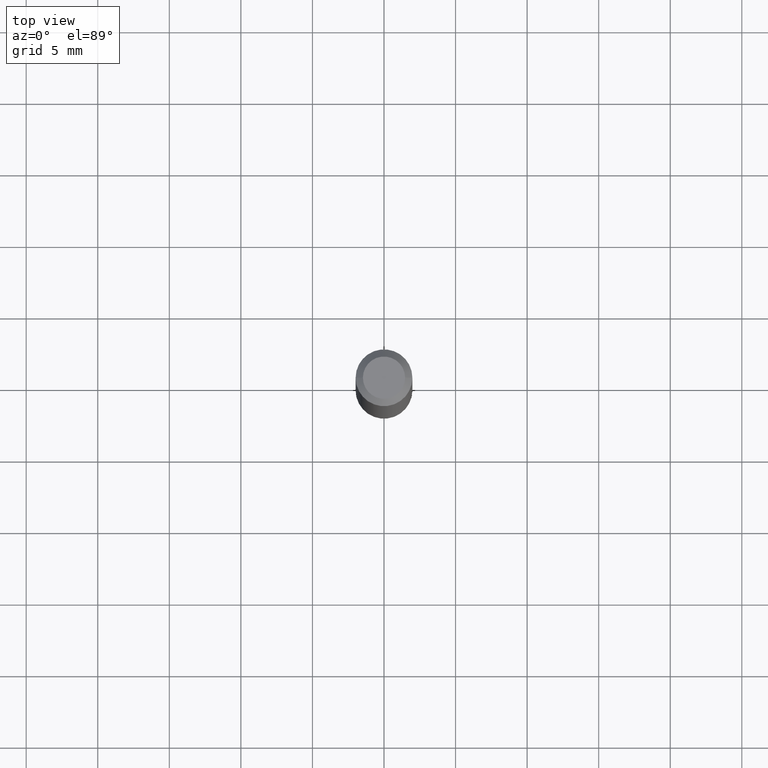
[diagram: clean part render]
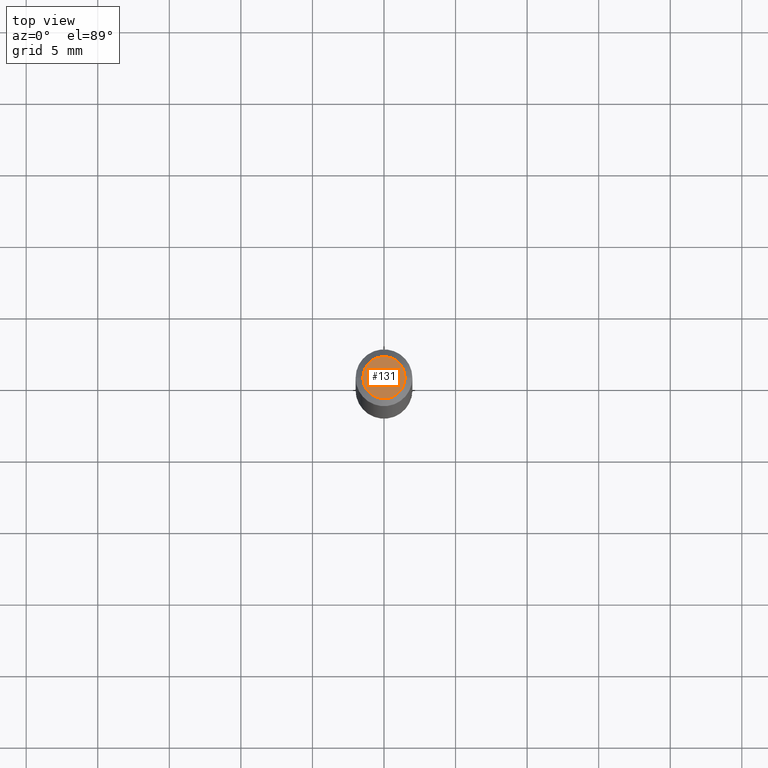
[diagram: same view with one face highlighted and labeled with its STEP entity id]
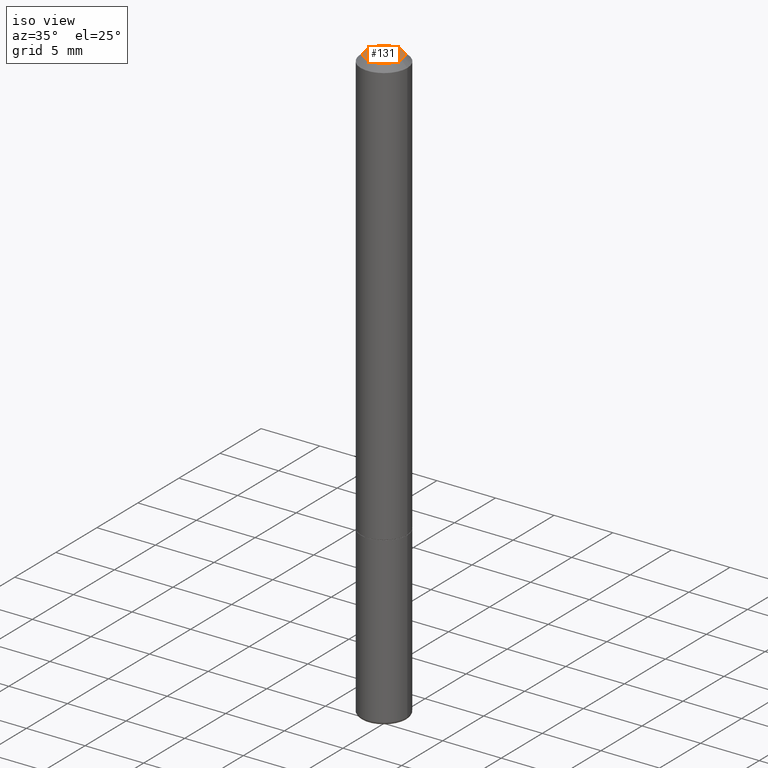
[diagram: same view with one face highlighted and labeled with its STEP entity id]
A machine part, top view. The second image highlights one B-rep face of the part: STEP entity #131.
A second angle (iso view) of the same face is appended — the face is thin or edge-on in the first view.
In plain terms, the highlighted planar face has unit normal (0, -0, -1).
Its self-contained STEP definition (entity closure, byte-faithful):
#2 = CARTESIAN_POINT ( 'NONE',  ( 0.000000000000000000, 0.000000000000000000, 0.000000000000000000 ) ) ;
#3 = AXIS2_PLACEMENT_3D ( 'NONE', #417, #82, #48 ) ;
#6 = DIRECTION ( 'NONE',  ( 1.000000000000000000, -6.982962677686267499E-15, 4.876176775795936353E-29 ) ) ;
#24 = ORIENTED_EDGE ( 'NONE', *, *, #203, .T. ) ;
#47 = CARTESIAN_POINT ( 'NONE',  ( 0.05809999999999986703, -5.021147270366716439E-16, 3.173941575800420060E-30 ) ) ;
#48 = DIRECTION ( 'NONE',  ( -1.000000000000000000, 6.982962677686265922E-15, -4.876176775795935793E-29 ) ) ;
#74 = AXIS2_PLACEMENT_3D ( 'NONE', #393, #225, #423 ) ;
#82 = DIRECTION ( 'NONE',  ( 2.438088387897960049E-29, -3.491481338843145188E-15, -1.000000000000000000 ) ) ;
#103 = CARTESIAN_POINT ( 'NONE',  ( -0.05809999999999986703, 4.406249449620021933E-16, -2.959251149157180007E-30 ) ) ;
#108 = DIRECTION ( 'NONE',  ( -2.445468806185136597E-29, 3.491481338843145583E-15, 1.000000000000000000 ) ) ;
#123 = VERTEX_POINT ( 'NONE', #47 ) ;
#131 = ADVANCED_FACE ( 'NONE', ( #142 ), #277, .F. ) ;
#140 = ORIENTED_EDGE ( 'NONE', *, *, #298, .T. ) ;
#142 = FACE_OUTER_BOUND ( 'NONE', #416, .T. ) ;
#203 = EDGE_CURVE ( 'NONE', #123, #418, #260, .T. ) ;
#225 = DIRECTION ( 'NONE',  ( -2.445468806185136597E-29, 3.491481338843145583E-15, 1.000000000000000000 ) ) ;
#260 = CIRCLE ( 'NONE', #74, 0.05809999999999986703 ) ;
#274 = AXIS2_PLACEMENT_3D ( 'NONE', #2, #108, #6 ) ;
#277 = PLANE ( 'NONE',  #3 ) ;
#293 = CIRCLE ( 'NONE', #274, 0.05809999999999986703 ) ;
#298 = EDGE_CURVE ( 'NONE', #418, #123, #293, .T. ) ;
#393 = CARTESIAN_POINT ( 'NONE',  ( 0.000000000000000000, 0.000000000000000000, 0.000000000000000000 ) ) ;
#416 = EDGE_LOOP ( 'NONE', ( #140, #24 ) ) ;
#417 = CARTESIAN_POINT ( 'NONE',  ( 4.057101315735711358E-16, 0.05809999999999986703, -2.028550657867863075E-16 ) ) ;
#418 = VERTEX_POINT ( 'NONE', #103 ) ;
#423 = DIRECTION ( 'NONE',  ( 1.000000000000000000, -6.982962677686267499E-15, 4.876176775795936353E-29 ) ) ;